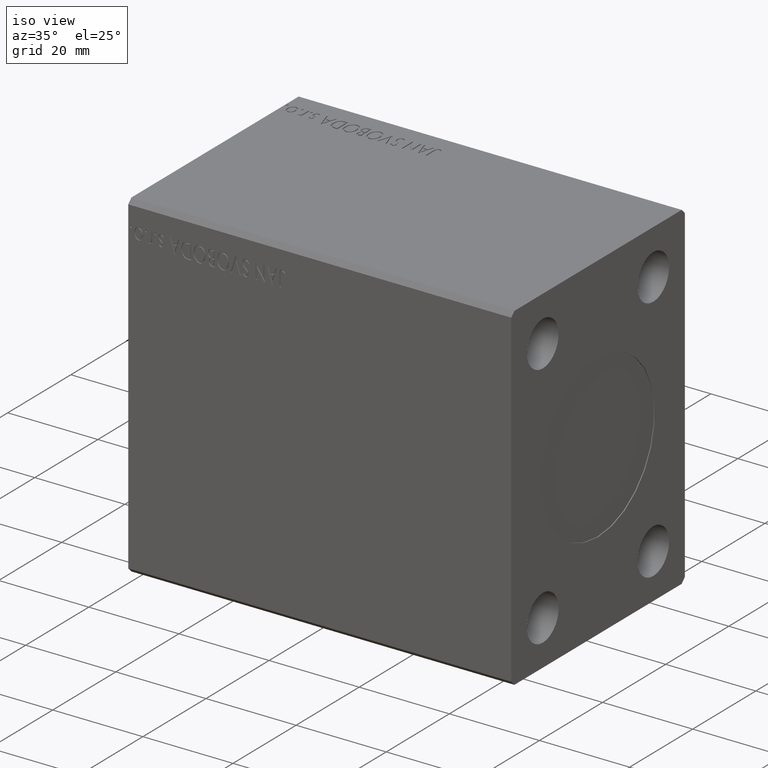
[diagram: clean part render]
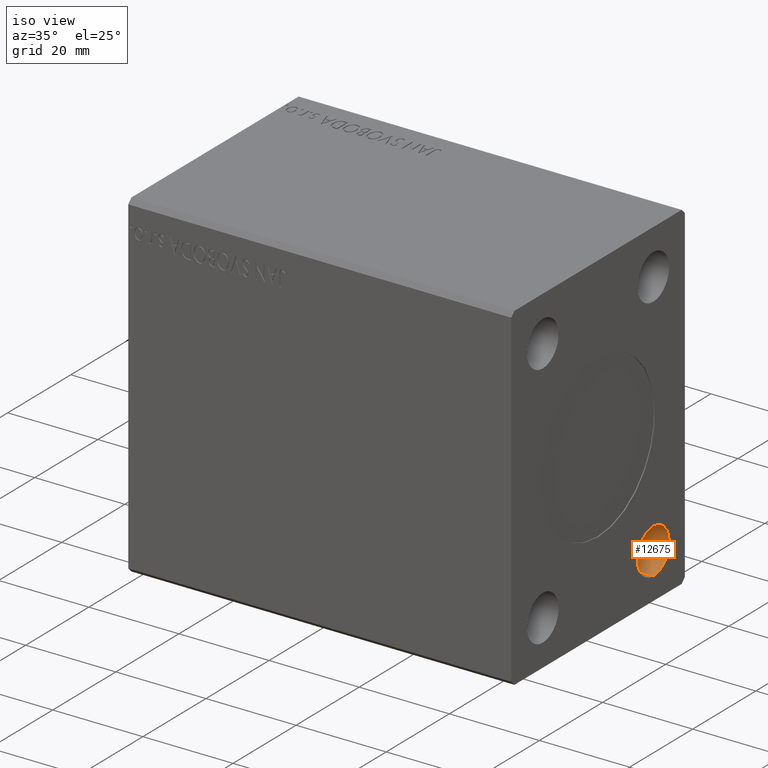
[diagram: same view with one face highlighted and labeled with its STEP entity id]
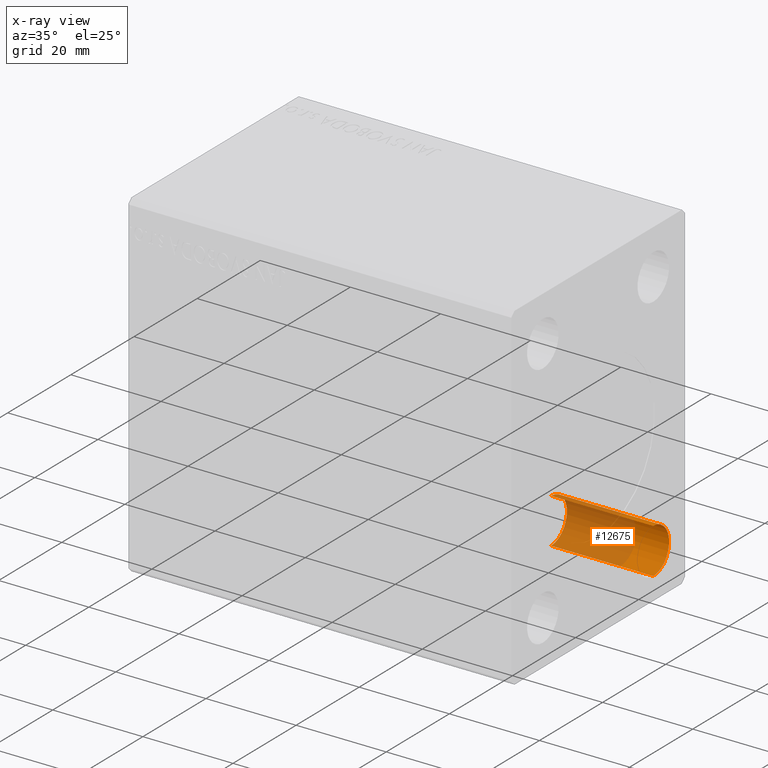
[diagram: x-ray of the same camera — body ghosted, the highlighted face saturated]
A machine part, iso view. The second image highlights one B-rep face of the part: STEP entity #12675.
The next image is the same camera in x-ray: the body ghosted, the highlighted face saturated — about 67% of this face is hidden behind the body in this view.
In plain terms, the highlighted cylindrical surface (edge-blend (fillet) strip) has radius 5 mm, axis along (1, 0, 0).
Its self-contained STEP definition (entity closure, byte-faithful):
#6308 = CYLINDRICAL_SURFACE ( 'NONE', #24585, 4.999999999999993783 ) ;
#8135 = CARTESIAN_POINT ( 'NONE',  ( 62.33000000000000540, 17.50000000000000000, -27.49999999999999289 ) ) ;
#8414 = EDGE_CURVE ( 'NONE', #31737, #12180, #11588, .T. ) ;
#9645 = FACE_OUTER_BOUND ( 'NONE', #34220, .T. ) ;
#10341 = ORIENTED_EDGE ( 'NONE', *, *, #27420, .F. ) ;
#11095 = LINE ( 'NONE', #41890, #13096 ) ;
#11588 = CIRCLE ( 'NONE', #36527, 4.999999999999993783 ) ;
#11878 = AXIS2_PLACEMENT_3D ( 'NONE', #8135, #42925, #39600 ) ;
#12180 = VERTEX_POINT ( 'NONE', #32908 ) ;
#12192 = DIRECTION ( 'NONE',  ( 1.000000000000000000, -0.000000000000000000, -0.000000000000000000 ) ) ;
#12675 = ADVANCED_FACE ( 'NONE', ( #9645 ), #6308, .F. ) ;
#13096 = VECTOR ( 'NONE', #24703, 1000.000000000000000 ) ;
#14221 = CARTESIAN_POINT ( 'NONE',  ( 62.33000000000000540, 17.50000000000000000, -22.50000000000000000 ) ) ;
#14403 = ORIENTED_EDGE ( 'NONE', *, *, #38513, .F. ) ;
#18824 = ORIENTED_EDGE ( 'NONE', *, *, #27131, .T. ) ;
#19130 = CARTESIAN_POINT ( 'NONE',  ( 85.00000000000000000, 17.50000000000000000, -27.49999999999999289 ) ) ;
#19171 = ORIENTED_EDGE ( 'NONE', *, *, #8414, .T. ) ;
#19915 = DIRECTION ( 'NONE',  ( 1.000000000000000000, -0.000000000000000000, -0.000000000000000000 ) ) ;
#20125 = DIRECTION ( 'NONE',  ( 0.000000000000000000, 0.000000000000000000, -1.000000000000000000 ) ) ;
#24585 = AXIS2_PLACEMENT_3D ( 'NONE', #27042, #19915, #20125 ) ;
#24703 = DIRECTION ( 'NONE',  ( 1.000000000000000000, -0.000000000000000000, -0.000000000000000000 ) ) ;
#25107 = VERTEX_POINT ( 'NONE', #14221 ) ;
#25803 = DIRECTION ( 'NONE',  ( 0.000000000000000000, 0.000000000000000000, -1.000000000000000000 ) ) ;
#27042 = CARTESIAN_POINT ( 'NONE',  ( 85.00000000000000000, 17.50000000000000000, -27.49999999999999289 ) ) ;
#27131 = EDGE_CURVE ( 'NONE', #36773, #31737, #11095, .T. ) ;
#27420 = EDGE_CURVE ( 'NONE', #25107, #12180, #43082, .T. ) ;
#28653 = DIRECTION ( 'NONE',  ( 1.000000000000000000, -0.000000000000000000, -0.000000000000000000 ) ) ;
#31737 = VERTEX_POINT ( 'NONE', #40415 ) ;
#32212 = CARTESIAN_POINT ( 'NONE',  ( 85.00000000000000000, 17.50000000000000000, -22.50000000000000000 ) ) ;
#32908 = CARTESIAN_POINT ( 'NONE',  ( 85.00000000000000000, 17.50000000000000000, -22.49999999999999645 ) ) ;
#33272 = CIRCLE ( 'NONE', #11878, 4.999999999999993783 ) ;
#34220 = EDGE_LOOP ( 'NONE', ( #10341, #14403, #18824, #19171 ) ) ;
#36527 = AXIS2_PLACEMENT_3D ( 'NONE', #19130, #12192, #25803 ) ;
#36773 = VERTEX_POINT ( 'NONE', #40318 ) ;
#38513 = EDGE_CURVE ( 'NONE', #36773, #25107, #33272, .T. ) ;
#39600 = DIRECTION ( 'NONE',  ( 0.000000000000000000, 0.000000000000000000, -1.000000000000000000 ) ) ;
#40318 = CARTESIAN_POINT ( 'NONE',  ( 62.33000000000000540, 17.50000000000000000, -32.49999999999998579 ) ) ;
#40415 = CARTESIAN_POINT ( 'NONE',  ( 85.00000000000000000, 17.50000000000000000, -32.49999999999998579 ) ) ;
#41890 = CARTESIAN_POINT ( 'NONE',  ( 85.00000000000000000, 17.50000000000000000, -32.49999999999998579 ) ) ;
#42925 = DIRECTION ( 'NONE',  ( 1.000000000000000000, -0.000000000000000000, -0.000000000000000000 ) ) ;
#43039 = VECTOR ( 'NONE', #28653, 1000.000000000000000 ) ;
#43082 = LINE ( 'NONE', #32212, #43039 ) ;